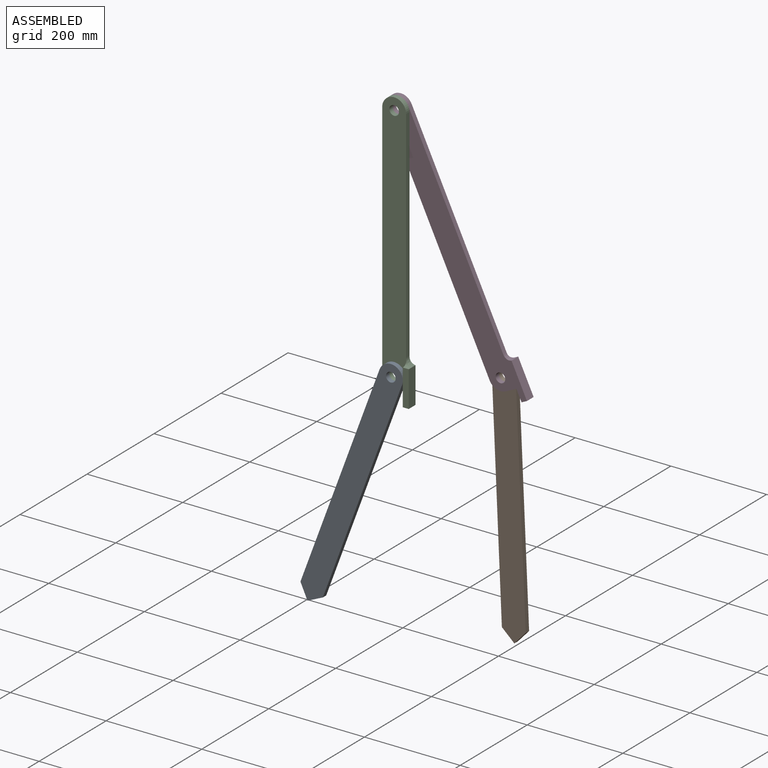
[diagram: assembled view]
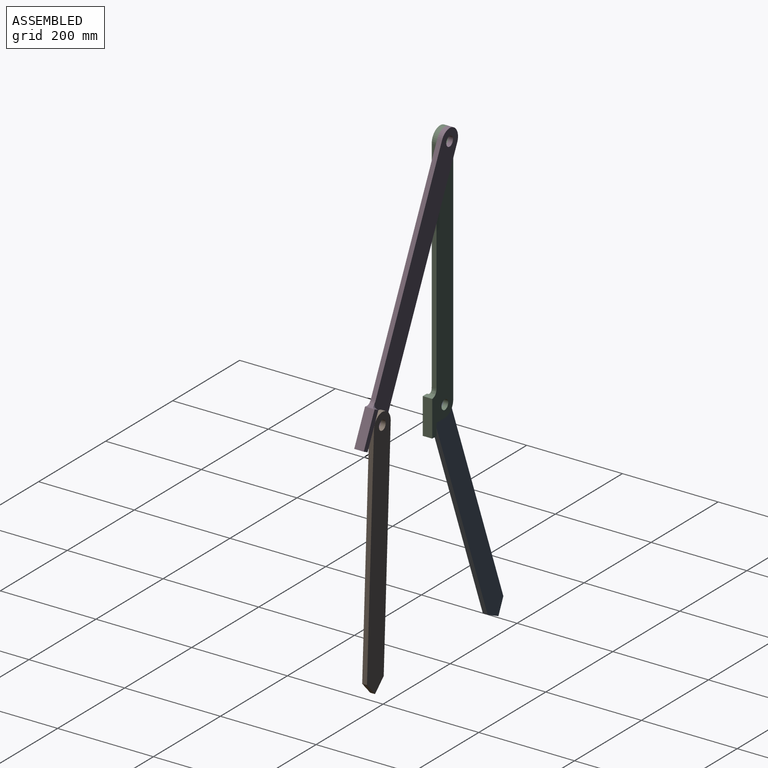
[diagram: assembled view, second angle]
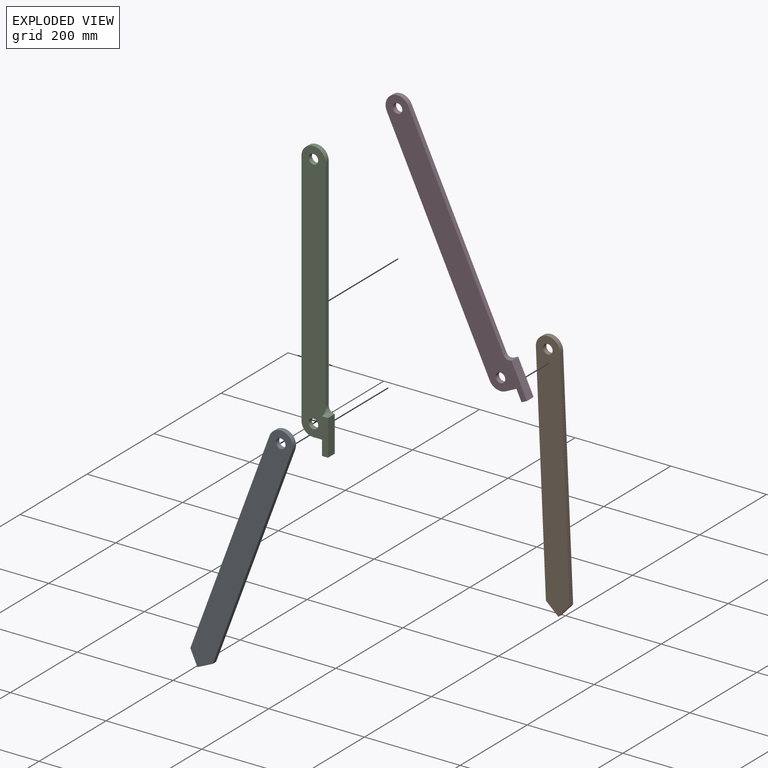
[diagram: exploded view]
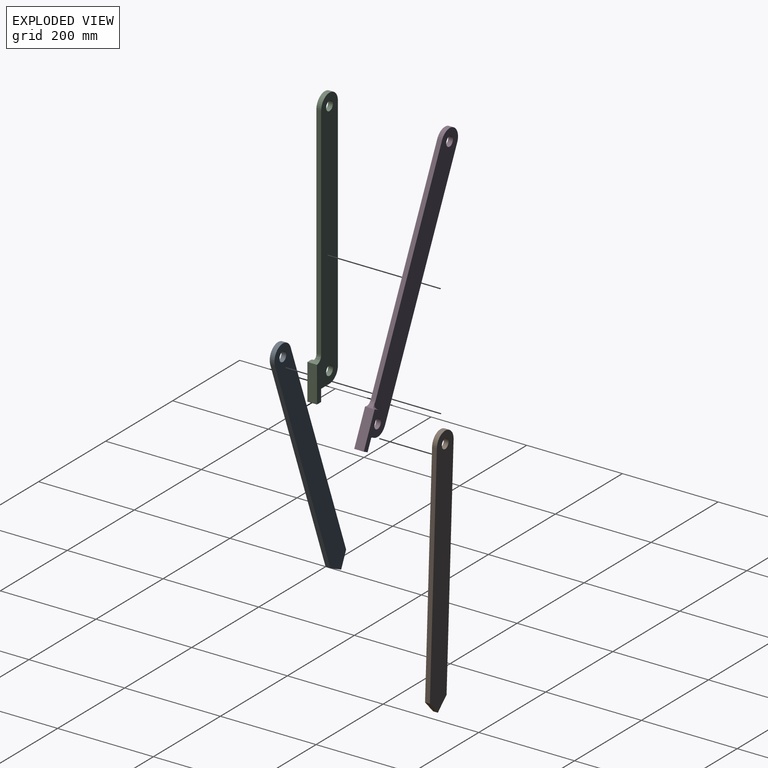
[diagram: exploded view, second angle]
ASSEMBLY  parts=4 mates=5
PART A: 8 faces, bbox 50x525x10 mm
  f0: plane 525x50mm, normal (0,0,-1), area 25042.6mm2, adj f1,f2,f3,f5,f6,f7
  f1: plane 475x10mm, normal (1,0,0), area 4750mm2, adj f0,f2,f4,f7
  f2: cylinder r=25mm len=50mm, axis (0,0,-1), area 785.4mm2, adj f0,f1,f4,f5
  f3: cylinder r=10mm len=20mm, axis (0,0,-1), area 628.3mm2, adj f0,f4
  f4: plane 525x50mm, normal (0,0,1), area 25042.6mm2, adj f1,f2,f3,f5,f6,f7
  f5: plane 475x10mm, normal (-1,0,0), area 4750mm2, adj f0,f2,f4,f6
  f6: plane 25x25mm, normal (-0.71,-0.71,0), area 353.6mm2, adj f0,f4,f5,f7
  f7: plane 25x25mm, normal (0.71,-0.71,0), area 353.6mm2, adj f0,f1,f4,f6
PART B: same geometry as A
PART C: 15 faces, bbox 63.1x575x33 mm
  f0: cylinder r=25mm len=25mm, axis (0,0,-1), area 392.7mm2, adj f4,f5,f6,f14
  f1: plane 460.21x10mm, normal (1,0,0), area 4602.1mm2, adj f2,f4,f5,f12
  f2: cylinder r=25mm len=50mm, axis (0,0,-1), area 785.4mm2, adj f1,f4,f5,f6
  f3: cylinder r=10mm len=20mm, axis (0,0,-1), area 628.3mm2, adj f4,f5
  f4: plane 550x50.6mm, normal (0,0,1), area 26470.1mm2, adj f0,f1,f2,f3,f6,f7,f8,f12
  f5: plane 575x62.5mm, normal (0,0,-1), area 27446.4mm2, adj f0,f1,f2,f3,f6,f7,f8,f9
  f6: plane 500x10mm, normal (-1,0,0), area 5000mm2, adj f0,f2,f4,f5
  f7: cylinder r=10mm len=20mm, axis (0,0,-1), area 628.3mm2, adj f4,f5
  f8: plane 85x20mm, normal (-1,0,0), area 1016.7mm2, adj f4,f5,f9,f11,f13,f14
  f9: plane 20x12.5mm, normal (0,-1,0), area 250mm2, adj f5,f8,f10,f11
  f10: plane 75x20mm, normal (1,0,0), area 1500mm2, adj f5,f9,f11,f12
  f11: plane 75x12.5mm, normal (0,0,1), area 937.5mm2, adj f8,f9,f10,f13
  f12: bspline ~33x14.79mm, area 260mm2, adj f1,f4,f5,f10,f13
  f13: bspline ~13.75x10mm, area 100.2mm2, adj f4,f8,f11,f12
  f14: plane 25x10mm, normal (0,-1,0), area 250mm2, adj f0,f4,f5,f8
PART D: 15 faces, bbox 63.1x575x33 mm
  f0: plane 500x10mm, normal (-1,0,0), area 5000mm2, adj f2,f5,f10,f14
  f1: plane 460.21x10mm, normal (1,0,0), area 4602.1mm2, adj f2,f10,f12,f14
  f2: cylinder r=25mm len=50mm, axis (0,0,-1), area 785.4mm2, adj f0,f1,f10,f14
  f3: cylinder r=10mm len=20mm, axis (0,0,-1), area 628.3mm2, adj f10,f14
  f4: plane 85x20mm, normal (-1,0,0), area 1016.7mm2, adj f7,f9,f10,f11,f13,f14
  f5: cylinder r=25mm len=25mm, axis (0,0,-1), area 392.7mm2, adj f0,f9,f10,f14
  f6: cylinder r=10mm len=20mm, axis (0,0,-1), area 628.3mm2, adj f10,f14
  f7: plane 20x12.5mm, normal (0,-1,0), area 250mm2, adj f4,f8,f11,f14
  f8: plane 75x20mm, normal (1,0,0), area 1500mm2, adj f7,f11,f12,f14
  f9: plane 25x10mm, normal (0,-1,0), area 250mm2, adj f4,f5,f10,f14
  f10: plane 550x50.6mm, normal (0,0,-1), area 26470.1mm2, adj f0,f1,f2,f3,f4,f5,f6,f9
  f11: plane 75x12.5mm, normal (0,0,-1), area 937.5mm2, adj f4,f7,f8,f13
  f12: bspline ~33x14.79mm, area 260mm2, adj f1,f8,f10,f13,f14
  f13: bspline ~13.75x10mm, area 100.2mm2, adj f4,f10,f11,f12
  f14: plane 575x62.5mm, normal (0,0,1), area 27446.4mm2, adj f0,f1,f2,f3,f4,f5,f6,f7
PLACE A rot(axis=(-0.13,-0.7,-0.7),165.6deg) t=(-289.36,-232.45,-379.08)mm
PLACE B rot(axis=(1,-0.02,0.02),90deg) t=(23.87,-192.45,-345.84)mm
PLACE C rot(axis=(1,0,0),90deg) t=(-202.29,-212.45,105.26)mm fixed
PLACE D rot(axis=(0.95,-0.22,0.22),92.8deg) t=(-94.72,-212.45,129.59)mm
MATE revolute D.f2 <-> C.f3  axis (0,-1,0) through (-202.29,-212.45,355.26)mm
MATE revolute B.f3 <-> D.f6  axis (0,-1,0) through (12.84,-202.45,-96.09)mm
MATE parallel A.f2 <-> C.f4  axis (0,1,0) through (-202.29,-222.45,-144.74)mm
MATE revolute A.f3 <-> C.f7  axis (0,-1,0) through (-202.29,-222.45,-144.74)mm
MATE parallel C.f4 <-> A.f4  axis (0,-1,0) through (-202.19,-222.45,103.89)mm
